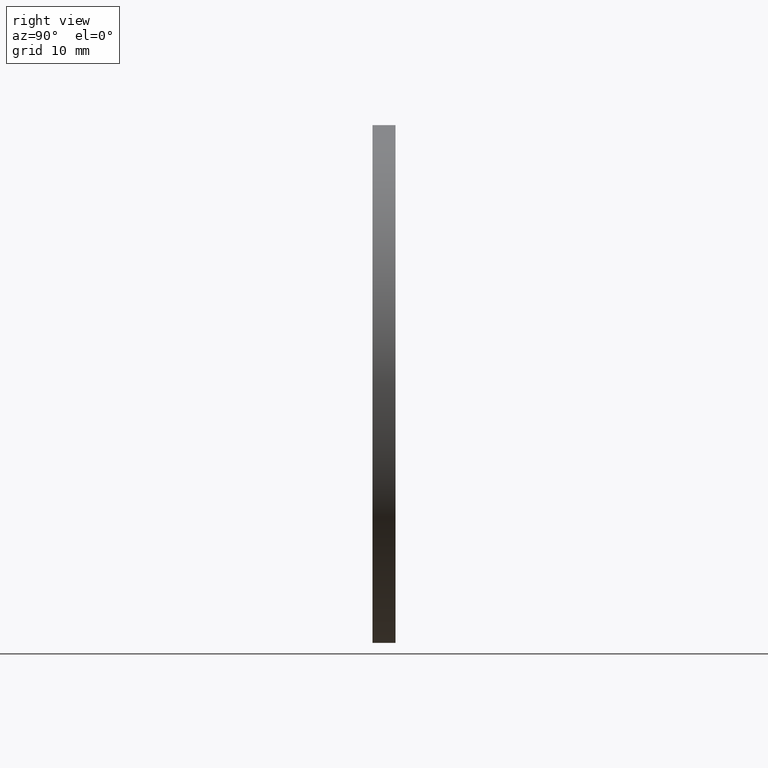
[diagram: clean part render]
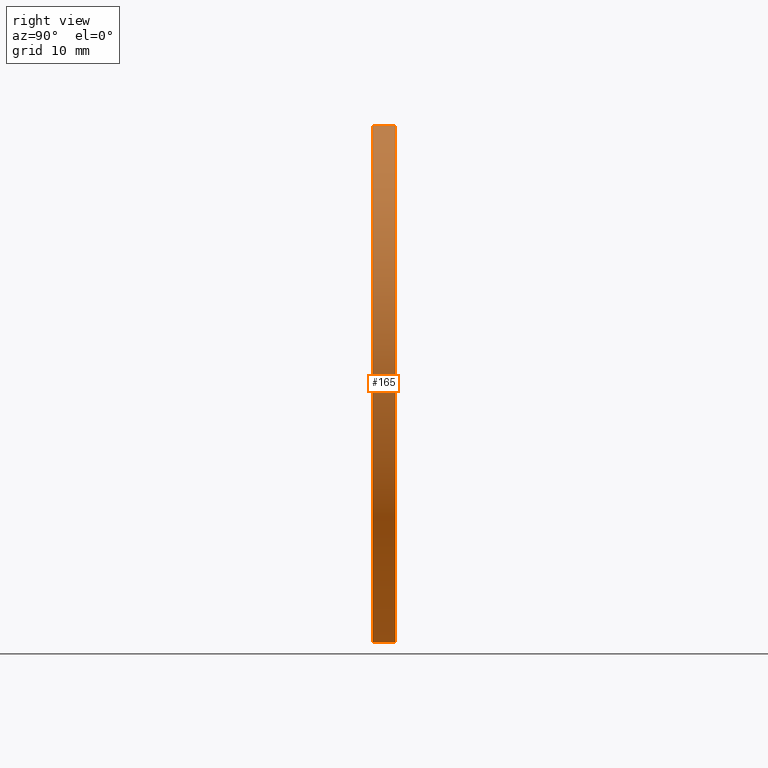
[diagram: same view with one face highlighted and labeled with its STEP entity id]
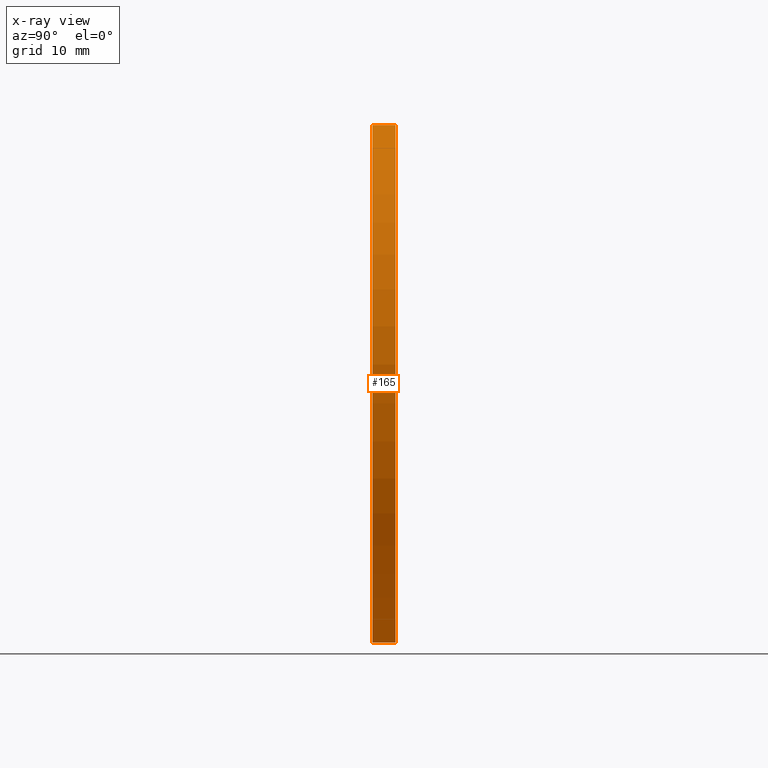
[diagram: x-ray of the same camera — body ghosted, the highlighted face saturated]
A machine part, right view. The second image highlights one B-rep face of the part: STEP entity #165.
The next image is the same camera in x-ray: the body ghosted, the highlighted face saturated — about 0% of this face is hidden behind the body in this view.
In plain terms, the highlighted cylindrical surface (partial cylindrical patch) has radius 28 mm, axis along (-0, 1, -0).
Its self-contained STEP definition (entity closure, byte-faithful):
#6 = CIRCLE ( 'NONE', #13, 28.00000000000001100 ) ;
#12 = VERTEX_POINT ( 'NONE', #53 ) ;
#13 = AXIS2_PLACEMENT_3D ( 'NONE', #193, #112, #80 ) ;
#16 = VERTEX_POINT ( 'NONE', #109 ) ;
#18 = CYLINDRICAL_SURFACE ( 'NONE', #146, 28.00000000000001100 ) ;
#21 = CARTESIAN_POINT ( 'NONE',  ( 0.0000000000000000000, 77.14414226561778800, 0.0000000000000000000 ) ) ;
#40 = CARTESIAN_POINT ( 'NONE',  ( 3.429011037612590100E-015, 2.500000000000002200, -28.00000000000001100 ) ) ;
#53 = CARTESIAN_POINT ( 'NONE',  ( 0.0000000000000000000, 0.0000000000000000000, 28.00000000000001100 ) ) ;
#60 = ORIENTED_EDGE ( 'NONE', *, *, #105, .F. ) ;
#63 = DIRECTION ( 'NONE',  ( -0.0000000000000000000, 1.000000000000000000, -0.0000000000000000000 ) ) ;
#76 = CARTESIAN_POINT ( 'NONE',  ( 3.429011037612590100E-015, 77.14414226561778800, -28.00000000000001100 ) ) ;
#78 = VERTEX_POINT ( 'NONE', #40 ) ;
#80 = DIRECTION ( 'NONE',  ( 0.0000000000000000000, 0.0000000000000000000, 1.000000000000000000 ) ) ;
#94 = DIRECTION ( 'NONE',  ( -0.0000000000000000000, 1.000000000000000000, -0.0000000000000000000 ) ) ;
#105 = EDGE_CURVE ( 'NONE', #16, #78, #6, .T. ) ;
#109 = CARTESIAN_POINT ( 'NONE',  ( 0.0000000000000000000, 2.500000000000002200, 28.00000000000001100 ) ) ;
#110 = CIRCLE ( 'NONE', #150, 28.00000000000001100 ) ;
#112 = DIRECTION ( 'NONE',  ( -0.0000000000000000000, 1.000000000000000000, -0.0000000000000000000 ) ) ;
#118 = DIRECTION ( 'NONE',  ( 0.0000000000000000000, 0.0000000000000000000, 1.000000000000000000 ) ) ;
#123 = ORIENTED_EDGE ( 'NONE', *, *, #205, .T. ) ;
#125 = VERTEX_POINT ( 'NONE', #195 ) ;
#146 = AXIS2_PLACEMENT_3D ( 'NONE', #21, #94, #230 ) ;
#149 = DIRECTION ( 'NONE',  ( -0.0000000000000000000, 1.000000000000000000, -0.0000000000000000000 ) ) ;
#150 = AXIS2_PLACEMENT_3D ( 'NONE', #180, #63, #118 ) ;
#155 = EDGE_CURVE ( 'NONE', #12, #16, #162, .T. ) ;
#162 = LINE ( 'NONE', #227, #202 ) ;
#164 = VECTOR ( 'NONE', #170, 1000.000000000000000 ) ;
#165 = ADVANCED_FACE ( 'NONE', ( #244 ), #18, .T. ) ;
#170 = DIRECTION ( 'NONE',  ( -0.0000000000000000000, 1.000000000000000000, -0.0000000000000000000 ) ) ;
#174 = EDGE_LOOP ( 'NONE', ( #220, #123, #60, #223 ) ) ;
#180 = CARTESIAN_POINT ( 'NONE',  ( 0.0000000000000000000, 0.0000000000000000000, 0.0000000000000000000 ) ) ;
#193 = CARTESIAN_POINT ( 'NONE',  ( 0.0000000000000000000, 2.500000000000002200, 0.0000000000000000000 ) ) ;
#195 = CARTESIAN_POINT ( 'NONE',  ( 3.429011037612590100E-015, 0.0000000000000000000, -28.00000000000001100 ) ) ;
#202 = VECTOR ( 'NONE', #149, 1000.000000000000000 ) ;
#205 = EDGE_CURVE ( 'NONE', #125, #78, #235, .T. ) ;
#217 = EDGE_CURVE ( 'NONE', #12, #125, #110, .T. ) ;
#220 = ORIENTED_EDGE ( 'NONE', *, *, #217, .T. ) ;
#223 = ORIENTED_EDGE ( 'NONE', *, *, #155, .F. ) ;
#227 = CARTESIAN_POINT ( 'NONE',  ( 0.0000000000000000000, 77.14414226561778800, 28.00000000000001100 ) ) ;
#230 = DIRECTION ( 'NONE',  ( 0.0000000000000000000, 0.0000000000000000000, 1.000000000000000000 ) ) ;
#235 = LINE ( 'NONE', #76, #164 ) ;
#244 = FACE_OUTER_BOUND ( 'NONE', #174, .T. ) ;